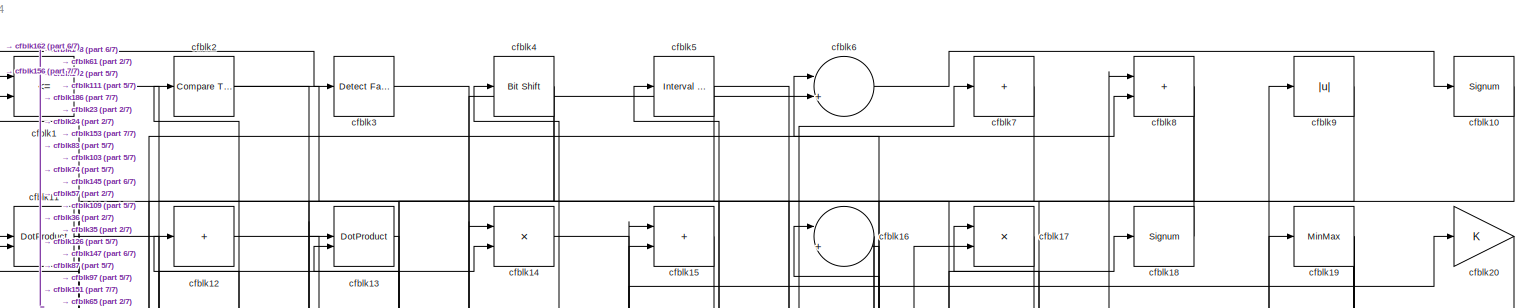
[diagram: root canvas - part 1/7, full width, top band]
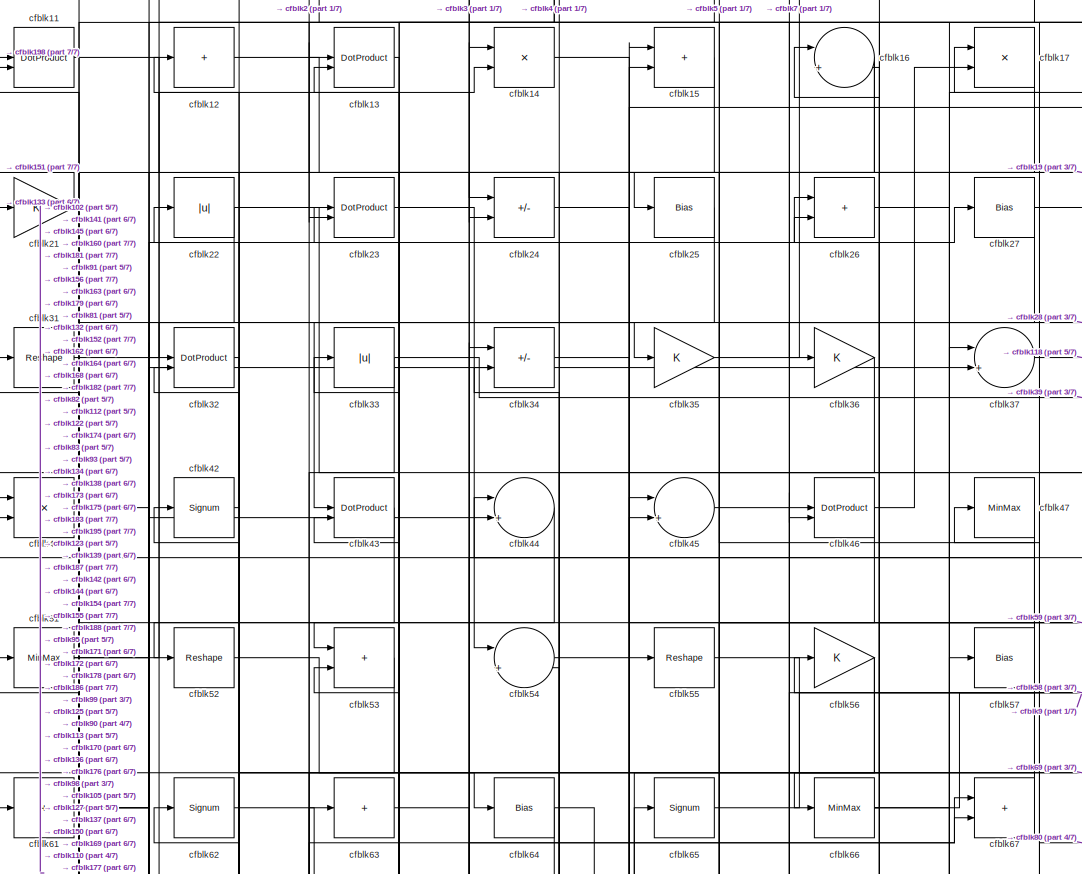
[diagram: root canvas - part 2/7, top center region]
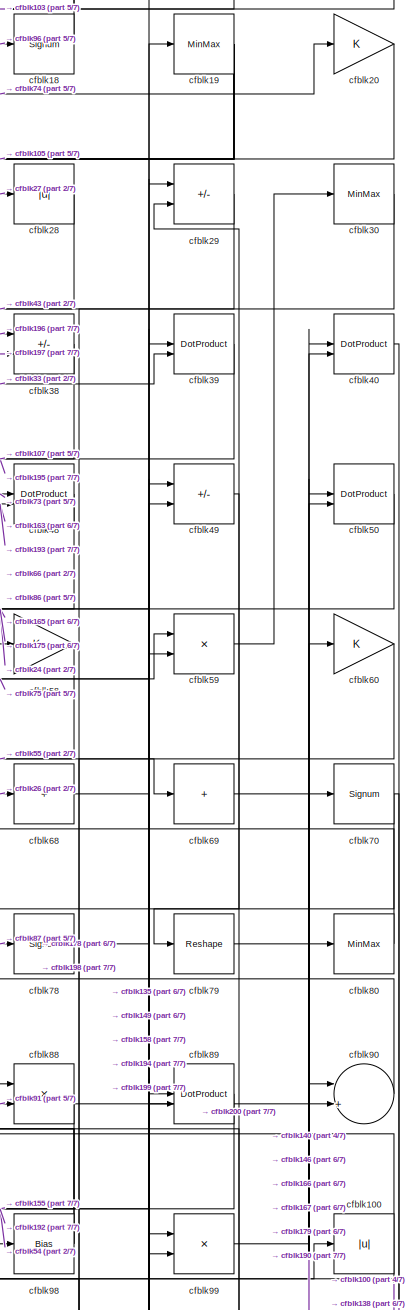
[diagram: root canvas - part 3/7, top right region]
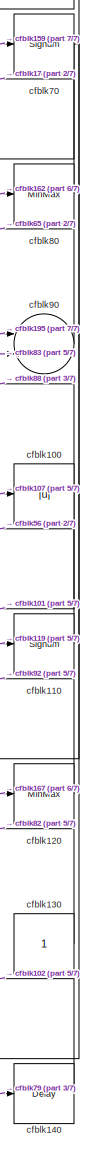
[diagram: root canvas - part 4/7, middle right region]
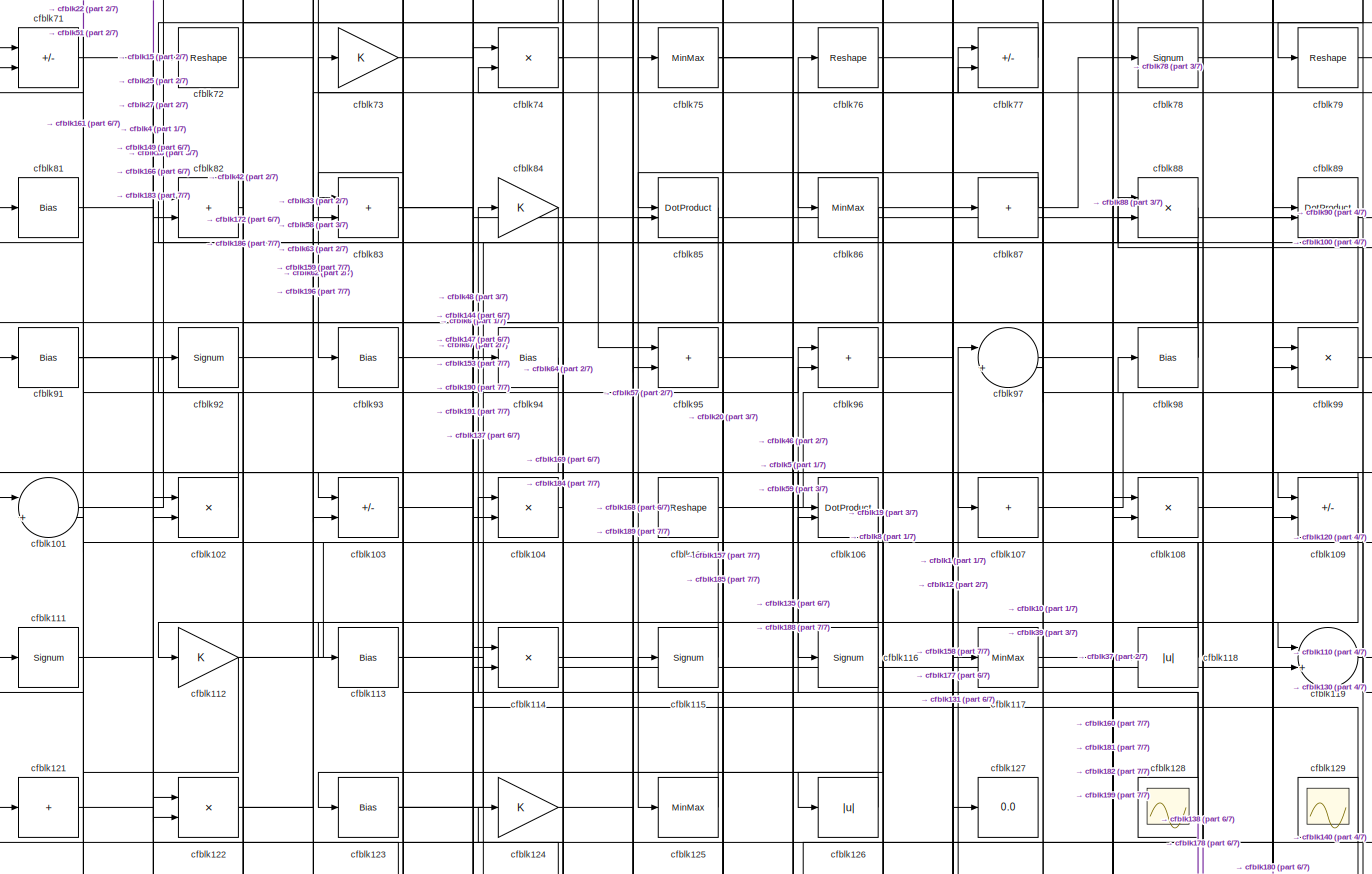
[diagram: root canvas - part 5/7, full width, middle band]
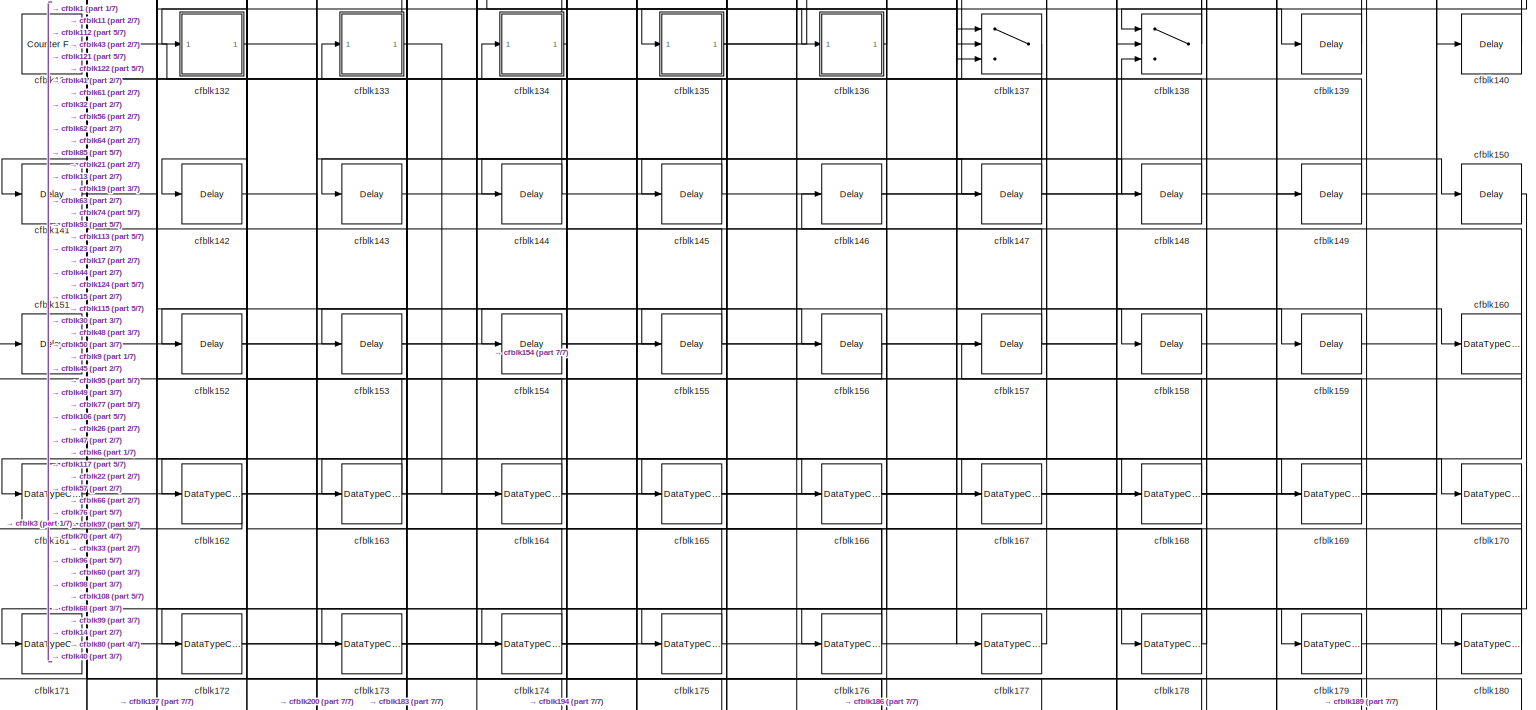
[diagram: root canvas - part 6/7, full width, bottom band]
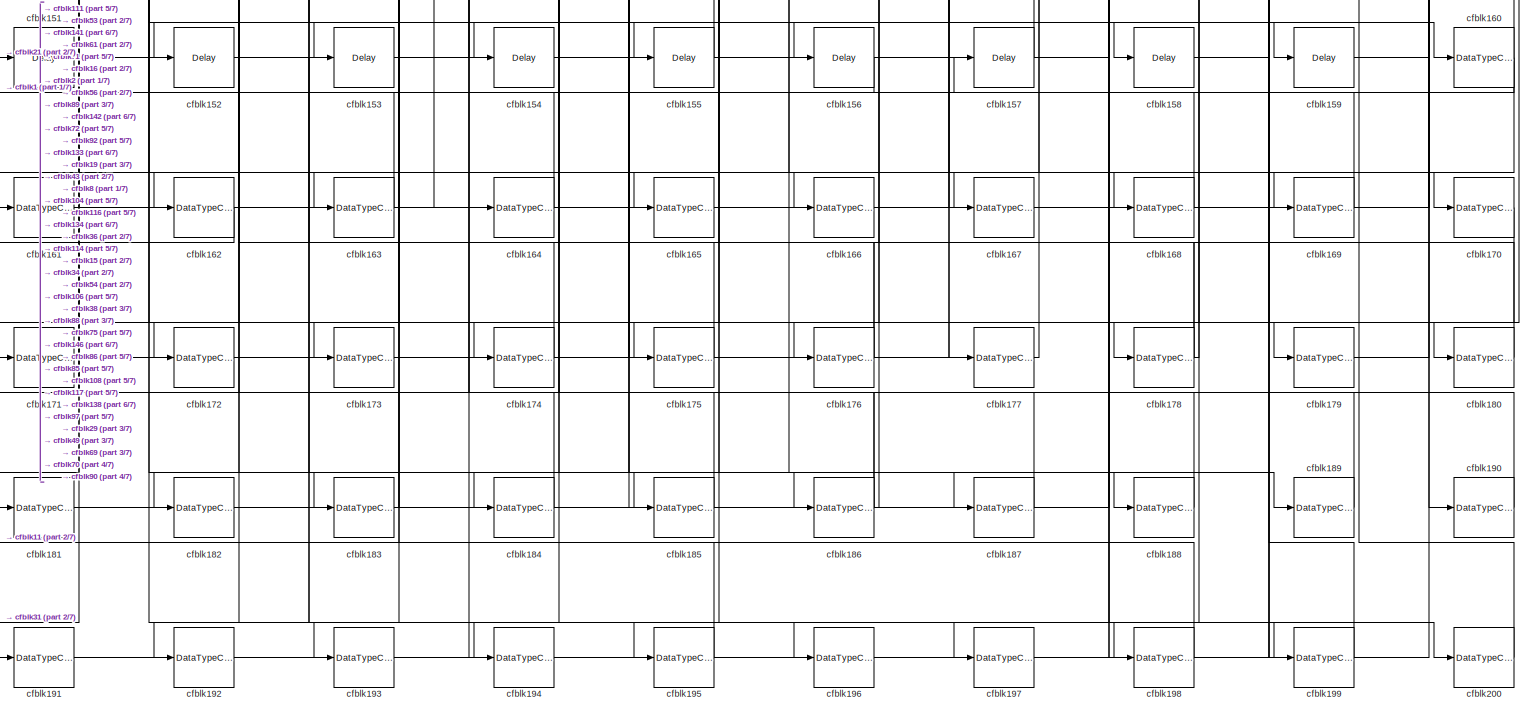
[diagram: root canvas - part 7/7, full width, bottom band]
MODEL slx_fe94e44add44
KIND model
CONFIG AbsTol = auto
CONFIG EnableMultiTasking = off
CONFIG FixedStep = auto
CONFIG MaxStep = auto
CONFIG MinStep = auto
CONFIG RelTol = 1e-3
CONFIG SampleTimeConstraint = Unconstrained
CONFIG SolverName = VariableStepAuto
CONFIG StartTime = 0.0
CONFIG StopTime = 10.0
BLOCK [RelationalOperator] cfblk1
  InputSameDT = off
  Operator = <=
  OutDataTypeStr = boolean
BLOCK [Signum] cfblk10
BLOCK [Abs] cfblk100
  SaturateOnIntegerOverflow = off
BLOCK [Sum] cfblk101
  Inputs = |++
BLOCK [Product] cfblk102
  Inputs = */
  RndMeth = Zero
  SaturateOnIntegerOverflow = on
BLOCK [Sum] cfblk103
  IconShape = rectangular
  Inputs = +-
BLOCK [Product] cfblk104
  Inputs = */
  RndMeth = Zero
  SaturateOnIntegerOverflow = on
BLOCK [Reshape] cfblk105
BLOCK [DotProduct] cfblk106
  OutDataTypeStr = Inherit: Inherit via internal rule
BLOCK [Sum] cfblk107
  IconShape = rectangular
  Inputs = +
BLOCK [Product] cfblk108
  Inputs = */
  RndMeth = Zero
  SaturateOnIntegerOverflow = on
BLOCK [Sum] cfblk109
  IconShape = rectangular
  Inputs = +-
BLOCK [DotProduct] cfblk11
  OutDataTypeStr = Inherit: Inherit via internal rule
BLOCK [Signum] cfblk110
BLOCK [Signum] cfblk111
BLOCK [Gain] cfblk112
BLOCK [Bias] cfblk113
  Bias = 0.0
  SaturateOnIntegerOverflow = off
BLOCK [Product] cfblk114
  Inputs = */
  RndMeth = Zero
  SaturateOnIntegerOverflow = on
BLOCK [Signum] cfblk115
BLOCK [Signum] cfblk116
BLOCK [MinMax] cfblk117
BLOCK [Abs] cfblk118
  SaturateOnIntegerOverflow = off
BLOCK [Sum] cfblk119
  Inputs = |++
BLOCK [Sum] cfblk12
  IconShape = rectangular
  Inputs = +
BLOCK [MinMax] cfblk120
BLOCK [Sum] cfblk121
  IconShape = rectangular
  Inputs = +
BLOCK [Product] cfblk122
  Inputs = */
  RndMeth = Zero
  SaturateOnIntegerOverflow = on
BLOCK [Bias] cfblk123
  Bias = 0.0
  SaturateOnIntegerOverflow = off
BLOCK [Gain] cfblk124
BLOCK [MinMax] cfblk125
BLOCK [Abs] cfblk126
  SaturateOnIntegerOverflow = off
BLOCK [Display] cfblk127
  Decimation = 1
BLOCK [Scope] cfblk128
  Floating = on
  NumInputPorts = 1
  ScopeSpecificationString = Simulink.scopes.TimeScopeBlockCfg('CurrentConfiguration', extmgr.ConfigurationSet(extmgr.Configuration('Core','General UI',true,'FigureColor',[0.156862745098039 0.156862745098039 0.156862745098039]),extmgr.Configuration('Core','Source UI',true),extmgr.Configuration('Sources','WiredSimulink',true,'DataLoggingVariableName','ScopeData1','DataLoggingSaveFormat','StructureWithTime','DataLoggingLimitDat...<+2713ch>
BLOCK [Scope] cfblk129
  Floating = on
  NumInputPorts = 1
  ScopeSpecificationString = Simulink.scopes.TimeScopeBlockCfg('CurrentConfiguration', extmgr.ConfigurationSet(extmgr.Configuration('Core','General UI',true,'FigureColor',[0.156862745098039 0.156862745098039 0.156862745098039]),extmgr.Configuration('Core','Source UI',true),extmgr.Configuration('Sources','WiredSimulink',true,'DataLoggingVariableName','ScopeData1','DataLoggingSaveFormat','StructureWithTime','DataLoggingLimitDat...<+2713ch>
BLOCK [DotProduct] cfblk13
  OutDataTypeStr = Inherit: Inherit via internal rule
BLOCK [Constant] cfblk130
  SampleTime = -1
BLOCK [Reference] cfblk131  REF=hdlsllib/Sources/Counter
Free-Running
  SourceBlock = hdlsllib/Sources/Counter\nFree-Running
  SourceType = Counter Free-Running
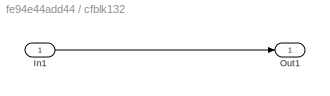
BLOCK [SubSystem] cfblk132
  LibrarySourceBlock = hdlsllib/Ports &\nSubsystems/Subsystem
BLOCK [Inport] cfblk132/In1
BLOCK [Outport] cfblk132/Out1
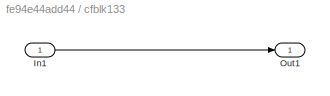
BLOCK [SubSystem] cfblk133
  LibrarySourceBlock = hdlsllib/Ports &\nSubsystems/Subsystem
BLOCK [Inport] cfblk133/In1
BLOCK [Outport] cfblk133/Out1
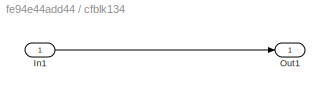
BLOCK [SubSystem] cfblk134
  LibrarySourceBlock = hdlsllib/Ports &\nSubsystems/Subsystem
BLOCK [Inport] cfblk134/In1
BLOCK [Outport] cfblk134/Out1
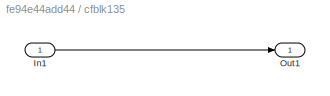
BLOCK [SubSystem] cfblk135
  LibrarySourceBlock = hdlsllib/Ports &\nSubsystems/Subsystem
BLOCK [Inport] cfblk135/In1
BLOCK [Outport] cfblk135/Out1
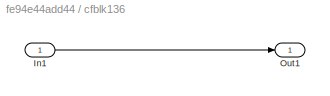
BLOCK [SubSystem] cfblk136
  LibrarySourceBlock = hdlsllib/Ports &\nSubsystems/Subsystem
BLOCK [Inport] cfblk136/In1
BLOCK [Outport] cfblk136/Out1
BLOCK [Switch] cfblk137
  InputSameDT = off
  SaturateOnIntegerOverflow = off
BLOCK [Switch] cfblk138
  InputSameDT = off
  SaturateOnIntegerOverflow = off
BLOCK [Delay] cfblk139
  InputPortMap = u0
  SampleTime = 1
BLOCK [Product] cfblk14
  Inputs = */
  RndMeth = Zero
  SaturateOnIntegerOverflow = on
BLOCK [Delay] cfblk140
  InputPortMap = u0
  SampleTime = 1
BLOCK [Delay] cfblk141
  InputPortMap = u0
  SampleTime = 1
BLOCK [Delay] cfblk142
  InputPortMap = u0
  SampleTime = 1
BLOCK [Delay] cfblk143
  InputPortMap = u0
  SampleTime = 1
BLOCK [Delay] cfblk144
  InputPortMap = u0
  SampleTime = 1
BLOCK [Delay] cfblk145
  InputPortMap = u0
  SampleTime = 1
BLOCK [Delay] cfblk146
  InputPortMap = u0
  SampleTime = 1
BLOCK [Delay] cfblk147
  InputPortMap = u0
  SampleTime = 1
BLOCK [Delay] cfblk148
  InputPortMap = u0
  SampleTime = 1
BLOCK [Delay] cfblk149
  InputPortMap = u0
  SampleTime = 1
BLOCK [Sum] cfblk15
  IconShape = rectangular
BLOCK [Delay] cfblk150
  InputPortMap = u0
  SampleTime = 1
BLOCK [Delay] cfblk151
  InputPortMap = u0
  SampleTime = 1
BLOCK [Delay] cfblk152
  InputPortMap = u0
  SampleTime = 1
BLOCK [Delay] cfblk153
  InputPortMap = u0
  SampleTime = 1
BLOCK [Delay] cfblk154
  InputPortMap = u0
  SampleTime = 1
BLOCK [Delay] cfblk155
  InputPortMap = u0
  SampleTime = 1
BLOCK [Delay] cfblk156
  InputPortMap = u0
  SampleTime = 1
BLOCK [Delay] cfblk157
  InputPortMap = u0
  SampleTime = 1
BLOCK [Delay] cfblk158
  InputPortMap = u0
  SampleTime = 1
BLOCK [Delay] cfblk159
  InputPortMap = u0
  SampleTime = 1
BLOCK [Sum] cfblk16
  Inputs = |++
BLOCK [DataTypeConversion] cfblk160
  RndMeth = Floor
  SaturateOnIntegerOverflow = off
BLOCK [DataTypeConversion] cfblk161
  OutDataTypeStr = uint8
  RndMeth = Floor
  SaturateOnIntegerOverflow = off
BLOCK [DataTypeConversion] cfblk162
  RndMeth = Floor
  SaturateOnIntegerOverflow = off
BLOCK [DataTypeConversion] cfblk163
  OutDataTypeStr = uint8
  RndMeth = Floor
  SaturateOnIntegerOverflow = off
BLOCK [DataTypeConversion] cfblk164
  OutDataTypeStr = uint8
  RndMeth = Floor
  SaturateOnIntegerOverflow = off
BLOCK [DataTypeConversion] cfblk165
  OutDataTypeStr = uint8
  RndMeth = Floor
  SaturateOnIntegerOverflow = off
BLOCK [DataTypeConversion] cfblk166
  OutDataTypeStr = uint8
  RndMeth = Floor
  SaturateOnIntegerOverflow = off
BLOCK [DataTypeConversion] cfblk167
  OutDataTypeStr = uint8
  RndMeth = Floor
  SaturateOnIntegerOverflow = off
BLOCK [DataTypeConversion] cfblk168
  OutDataTypeStr = uint8
  RndMeth = Floor
  SaturateOnIntegerOverflow = off
BLOCK [DataTypeConversion] cfblk169
  OutDataTypeStr = uint8
  RndMeth = Floor
  SaturateOnIntegerOverflow = off
BLOCK [Product] cfblk17
  Inputs = */
  RndMeth = Zero
  SaturateOnIntegerOverflow = on
BLOCK [DataTypeConversion] cfblk170
  OutDataTypeStr = uint8
  RndMeth = Floor
  SaturateOnIntegerOverflow = off
BLOCK [DataTypeConversion] cfblk171
  OutDataTypeStr = uint8
  RndMeth = Floor
  SaturateOnIntegerOverflow = off
BLOCK [DataTypeConversion] cfblk172
  OutDataTypeStr = uint8
  RndMeth = Floor
  SaturateOnIntegerOverflow = off
BLOCK [DataTypeConversion] cfblk173
  OutDataTypeStr = uint8
  RndMeth = Floor
  SaturateOnIntegerOverflow = off
BLOCK [DataTypeConversion] cfblk174
  OutDataTypeStr = uint8
  RndMeth = Floor
  SaturateOnIntegerOverflow = off
BLOCK [DataTypeConversion] cfblk175
  OutDataTypeStr = uint8
  RndMeth = Floor
  SaturateOnIntegerOverflow = off
BLOCK [DataTypeConversion] cfblk176
  RndMeth = Floor
  SaturateOnIntegerOverflow = off
BLOCK [DataTypeConversion] cfblk177
  OutDataTypeStr = uint8
  RndMeth = Floor
  SaturateOnIntegerOverflow = off
BLOCK [DataTypeConversion] cfblk178
  RndMeth = Floor
  SaturateOnIntegerOverflow = off
BLOCK [DataTypeConversion] cfblk179
  OutDataTypeStr = uint8
  RndMeth = Floor
  SaturateOnIntegerOverflow = off
BLOCK [Signum] cfblk18
BLOCK [DataTypeConversion] cfblk180
  OutDataTypeStr = uint8
  RndMeth = Floor
  SaturateOnIntegerOverflow = off
BLOCK [DataTypeConversion] cfblk181
  OutDataTypeStr = uint8
  RndMeth = Floor
  SaturateOnIntegerOverflow = off
BLOCK [DataTypeConversion] cfblk182
  OutDataTypeStr = uint8
  RndMeth = Floor
  SaturateOnIntegerOverflow = off
BLOCK [DataTypeConversion] cfblk183
  RndMeth = Floor
  SaturateOnIntegerOverflow = off
BLOCK [DataTypeConversion] cfblk184
  OutDataTypeStr = uint8
  RndMeth = Floor
  SaturateOnIntegerOverflow = off
BLOCK [DataTypeConversion] cfblk185
  OutDataTypeStr = uint8
  RndMeth = Floor
  SaturateOnIntegerOverflow = off
BLOCK [DataTypeConversion] cfblk186
  RndMeth = Floor
  SaturateOnIntegerOverflow = off
BLOCK [DataTypeConversion] cfblk187
  OutDataTypeStr = uint8
  RndMeth = Floor
  SaturateOnIntegerOverflow = off
BLOCK [DataTypeConversion] cfblk188
  OutDataTypeStr = uint8
  RndMeth = Floor
  SaturateOnIntegerOverflow = off
BLOCK [DataTypeConversion] cfblk189
  OutDataTypeStr = uint8
  RndMeth = Floor
  SaturateOnIntegerOverflow = off
BLOCK [MinMax] cfblk19
BLOCK [DataTypeConversion] cfblk190
  OutDataTypeStr = uint8
  RndMeth = Floor
  SaturateOnIntegerOverflow = off
BLOCK [DataTypeConversion] cfblk191
  OutDataTypeStr = uint8
  RndMeth = Floor
  SaturateOnIntegerOverflow = off
BLOCK [DataTypeConversion] cfblk192
  OutDataTypeStr = uint8
  RndMeth = Floor
  SaturateOnIntegerOverflow = off
BLOCK [DataTypeConversion] cfblk193
  OutDataTypeStr = uint8
  RndMeth = Floor
  SaturateOnIntegerOverflow = off
BLOCK [DataTypeConversion] cfblk194
  OutDataTypeStr = uint8
  RndMeth = Floor
  SaturateOnIntegerOverflow = off
BLOCK [DataTypeConversion] cfblk195
  RndMeth = Floor
  SaturateOnIntegerOverflow = off
BLOCK [DataTypeConversion] cfblk196
  OutDataTypeStr = uint8
  RndMeth = Floor
  SaturateOnIntegerOverflow = off
BLOCK [DataTypeConversion] cfblk197
  OutDataTypeStr = uint8
  RndMeth = Floor
  SaturateOnIntegerOverflow = off
BLOCK [DataTypeConversion] cfblk198
  OutDataTypeStr = uint8
  RndMeth = Floor
  SaturateOnIntegerOverflow = off
BLOCK [DataTypeConversion] cfblk199
  OutDataTypeStr = uint8
  RndMeth = Floor
  SaturateOnIntegerOverflow = off
BLOCK [Reference] cfblk2  REF=hdlsllib/Logic and Bit
Operations/Compare
To Zero
  SourceBlock = hdlsllib/Logic and Bit\nOperations/Compare\nTo Zero
  SourceType = Compare To Zero
BLOCK [Gain] cfblk20
BLOCK [DataTypeConversion] cfblk200
  OutDataTypeStr = uint8
  RndMeth = Floor
  SaturateOnIntegerOverflow = off
BLOCK [Gain] cfblk21
BLOCK [Abs] cfblk22
  SaturateOnIntegerOverflow = off
BLOCK [DotProduct] cfblk23
  OutDataTypeStr = Inherit: Inherit via internal rule
BLOCK [Sum] cfblk24
  IconShape = rectangular
  Inputs = +-
BLOCK [Bias] cfblk25
  Bias = 0.0
  SaturateOnIntegerOverflow = off
BLOCK [Sum] cfblk26
  IconShape = rectangular
BLOCK [Bias] cfblk27
  Bias = 0.0
  SaturateOnIntegerOverflow = off
BLOCK [Abs] cfblk28
  SaturateOnIntegerOverflow = off
BLOCK [Sum] cfblk29
  IconShape = rectangular
  Inputs = +-
BLOCK [Reference] cfblk3  REF=hdlsllib/Logic and Bit
Operations/Detect Fall
Nonpositive
  SourceBlock = hdlsllib/Logic and Bit\nOperations/Detect Fall\nNonpositive
  SourceType = Detect Fall Nonpositive
BLOCK [MinMax] cfblk30
BLOCK [Reshape] cfblk31
BLOCK [DotProduct] cfblk32
  OutDataTypeStr = Inherit: Inherit via internal rule
BLOCK [Abs] cfblk33
  SaturateOnIntegerOverflow = off
BLOCK [Sum] cfblk34
  IconShape = rectangular
  Inputs = +-
BLOCK [Gain] cfblk35
BLOCK [Gain] cfblk36
BLOCK [Sum] cfblk37
  Inputs = |++
BLOCK [Sum] cfblk38
  IconShape = rectangular
  Inputs = +-
BLOCK [DotProduct] cfblk39
  OutDataTypeStr = Inherit: Inherit via internal rule
BLOCK [Reference] cfblk4  REF=hdlsllib/Logic and Bit
Operations/Bit Shift
  SourceBlock = hdlsllib/Logic and Bit\nOperations/Bit Shift
  SourceType = Bit Shift
BLOCK [DotProduct] cfblk40
  OutDataTypeStr = Inherit: Inherit via internal rule
BLOCK [Product] cfblk41
  Inputs = */
  RndMeth = Zero
  SaturateOnIntegerOverflow = on
BLOCK [Signum] cfblk42
BLOCK [DotProduct] cfblk43
  OutDataTypeStr = Inherit: Inherit via internal rule
BLOCK [Sum] cfblk44
  Inputs = |++
BLOCK [Sum] cfblk45
  Inputs = |++
BLOCK [DotProduct] cfblk46
  OutDataTypeStr = Inherit: Inherit via internal rule
BLOCK [MinMax] cfblk47
BLOCK [DotProduct] cfblk48
  OutDataTypeStr = Inherit: Inherit via internal rule
BLOCK [Sum] cfblk49
  IconShape = rectangular
  Inputs = +-
BLOCK [Reference] cfblk5  REF=hdlsllib/Logic and Bit
Operations/Interval Test
  SourceBlock = hdlsllib/Logic and Bit\nOperations/Interval Test
  SourceType = Interval Test
BLOCK [DotProduct] cfblk50
  OutDataTypeStr = Inherit: Inherit via internal rule
BLOCK [MinMax] cfblk51
BLOCK [Reshape] cfblk52
BLOCK [Sum] cfblk53
  IconShape = rectangular
BLOCK [Sum] cfblk54
  Inputs = |++
BLOCK [Reshape] cfblk55
BLOCK [Gain] cfblk56
BLOCK [Bias] cfblk57
  Bias = 0.0
  SaturateOnIntegerOverflow = off
BLOCK [Gain] cfblk58
BLOCK [Product] cfblk59
  Inputs = */
  RndMeth = Zero
  SaturateOnIntegerOverflow = on
BLOCK [Sum] cfblk6
  Inputs = |++
BLOCK [Gain] cfblk60
BLOCK [Sum] cfblk61
  IconShape = rectangular
  Inputs = +
BLOCK [Signum] cfblk62
BLOCK [Sum] cfblk63
  IconShape = rectangular
  Inputs = +
BLOCK [Bias] cfblk64
  Bias = 0.0
  SaturateOnIntegerOverflow = off
BLOCK [Signum] cfblk65
BLOCK [MinMax] cfblk66
BLOCK [Sum] cfblk67
  IconShape = rectangular
BLOCK [Sum] cfblk68
  IconShape = rectangular
  Inputs = +
BLOCK [Sum] cfblk69
  IconShape = rectangular
  Inputs = +
BLOCK [Sum] cfblk7
  IconShape = rectangular
  Inputs = +
BLOCK [Signum] cfblk70
BLOCK [Sum] cfblk71
  IconShape = rectangular
  Inputs = +-
BLOCK [Reshape] cfblk72
BLOCK [Gain] cfblk73
BLOCK [Product] cfblk74
  Inputs = */
  RndMeth = Zero
  SaturateOnIntegerOverflow = on
BLOCK [MinMax] cfblk75
BLOCK [Reshape] cfblk76
BLOCK [Sum] cfblk77
  IconShape = rectangular
  Inputs = +-
BLOCK [Signum] cfblk78
BLOCK [Reshape] cfblk79
BLOCK [Sum] cfblk8
  IconShape = rectangular
BLOCK [MinMax] cfblk80
BLOCK [Bias] cfblk81
  Bias = 0.0
  SaturateOnIntegerOverflow = off
BLOCK [Sum] cfblk82
  IconShape = rectangular
BLOCK [Sum] cfblk83
  IconShape = rectangular
BLOCK [Gain] cfblk84
BLOCK [DotProduct] cfblk85
  OutDataTypeStr = Inherit: Inherit via internal rule
BLOCK [MinMax] cfblk86
BLOCK [Sum] cfblk87
  IconShape = rectangular
  Inputs = +
BLOCK [Product] cfblk88
  Inputs = */
  RndMeth = Zero
  SaturateOnIntegerOverflow = on
BLOCK [DotProduct] cfblk89
  OutDataTypeStr = Inherit: Inherit via internal rule
BLOCK [Abs] cfblk9
  SaturateOnIntegerOverflow = off
BLOCK [Sum] cfblk90
  Inputs = |++
BLOCK [Bias] cfblk91
  Bias = 0.0
  SaturateOnIntegerOverflow = off
BLOCK [Signum] cfblk92
BLOCK [Bias] cfblk93
  Bias = 0.0
  SaturateOnIntegerOverflow = off
BLOCK [Bias] cfblk94
  Bias = 0.0
  SaturateOnIntegerOverflow = off
BLOCK [Sum] cfblk95
  IconShape = rectangular
BLOCK [Sum] cfblk96
  IconShape = rectangular
BLOCK [Sum] cfblk97
  Inputs = |++
BLOCK [Bias] cfblk98
  Bias = 0.0
  SaturateOnIntegerOverflow = off
BLOCK [Product] cfblk99
  Inputs = */
  RndMeth = Zero
  SaturateOnIntegerOverflow = on
NET cfblk100:1 -> cfblk101:1, cfblk88:1
LINE cfblk101:1 -> cfblk96:1
LINE cfblk102:1 -> cfblk51:1
LINE cfblk103:1 -> cfblk6:2
LINE cfblk104:1 -> cfblk74:2
LINE cfblk105:1 -> cfblk37:1
LINE cfblk106:1 -> cfblk185:1
LINE cfblk107:1 -> cfblk100:1
LINE cfblk108:1 -> cfblk180:1
NET cfblk109:1 -> cfblk106:1, cfblk112:1
LINE cfblk10:1 -> cfblk97:2
LINE cfblk110:1 -> cfblk56:1
LINE cfblk111:1 -> cfblk8:2
NET cfblk112:1 -> cfblk161:1, cfblk67:2, cfblk94:1
NET cfblk113:1 -> cfblk137:3, cfblk46:1
LINE cfblk114:1 -> cfblk189:1
LINE cfblk115:1 -> cfblk81:1
NET cfblk116:1 -> cfblk184:1, cfblk73:1
LINE cfblk117:1 -> cfblk160:1
NET cfblk118:1 -> cfblk77:1, cfblk84:1
LINE cfblk119:1 -> cfblk110:1
LINE cfblk11:1 -> cfblk25:1
LINE cfblk120:1 -> cfblk92:1
LINE cfblk121:1 -> cfblk166:1
NET cfblk122:1 -> cfblk63:1, cfblk75:1
NET cfblk123:1 -> cfblk119:2, cfblk67:1, cfblk76:1
LINE cfblk124:1 -> cfblk168:1
LINE cfblk125:1 -> cfblk104:1
LINE cfblk126:1 -> cfblk123:1
LINE cfblk12:1 -> cfblk127:1
LINE cfblk130:1 -> cfblk82:1
LINE cfblk131:1 -> cfblk97:1
LINE cfblk132/In1:1 -> cfblk132/Out1:1
LINE cfblk132:1 -> cfblk148:1
LINE cfblk133/In1:1 -> cfblk133/Out1:1
NET cfblk133:1 -> cfblk164:1, cfblk21:1
LINE cfblk134/In1:1 -> cfblk134/Out1:1
NET cfblk134:1 -> cfblk194:1, cfblk23:1
LINE cfblk135/In1:1 -> cfblk135/Out1:1
NET cfblk135:1 -> cfblk49:2, cfblk77:2
LINE cfblk136/In1:1 -> cfblk136/Out1:1
LINE cfblk136:1 -> cfblk26:1
LINE cfblk137:1 -> cfblk143:1
NET cfblk138:1 -> cfblk33:1, cfblk96:2
LINE cfblk139:1 -> cfblk14:1
LINE cfblk13:1 -> cfblk173:1
LINE cfblk140:1 -> cfblk102:1
LINE cfblk141:1 -> cfblk197:1
LINE cfblk142:1 -> cfblk200:1
LINE cfblk143:1 -> cfblk138:3
LINE cfblk144:1 -> cfblk74:1
LINE cfblk145:1 -> cfblk11:2
LINE cfblk146:1 -> cfblk40:2
LINE cfblk147:1 -> cfblk6:1
LINE cfblk148:1 -> cfblk1:2
LINE cfblk149:1 -> cfblk122:1
LINE cfblk14:1 -> cfblk55:1
LINE cfblk150:1 -> cfblk171:1
LINE cfblk151:1 -> cfblk8:1
LINE cfblk152:1 -> cfblk187:1
LINE cfblk153:1 -> cfblk104:2
LINE cfblk154:1 -> cfblk138:2
LINE cfblk155:1 -> cfblk54:2
LINE cfblk156:1 -> cfblk1:1
LINE cfblk157:1 -> cfblk85:2
LINE cfblk158:1 -> cfblk19:1
LINE cfblk159:1 -> cfblk70:1
LINE cfblk15:1 -> cfblk82:2
NET cfblk160:1 -> cfblk157:1, cfblk191:1, cfblk31:1
LINE cfblk161:1 -> cfblk117:1
NET cfblk162:1 -> cfblk3:1, cfblk80:1
LINE cfblk163:1 -> cfblk32:1
LINE cfblk164:1 -> cfblk32:2
LINE cfblk165:1 -> cfblk99:1
LINE cfblk166:1 -> cfblk50:1
LINE cfblk167:1 -> cfblk50:2
LINE cfblk168:1 -> cfblk22:1
LINE cfblk169:1 -> cfblk124:1
NET cfblk16:1 -> cfblk152:1, cfblk41:1
LINE cfblk170:1 -> cfblk174:1
LINE cfblk171:1 -> cfblk45:1
LINE cfblk172:1 -> cfblk45:2
LINE cfblk173:1 -> cfblk57:1
LINE cfblk174:1 -> cfblk13:1
LINE cfblk175:1 -> cfblk13:2
NET cfblk176:1 -> cfblk44:1, cfblk62:1
LINE cfblk177:1 -> cfblk47:1
NET cfblk178:1 -> cfblk106:2, cfblk15:1, cfblk98:1
LINE cfblk179:1 -> cfblk60:1
LINE cfblk17:1 -> cfblk144:1
LINE cfblk180:1 -> cfblk115:1
LINE cfblk181:1 -> cfblk108:1
LINE cfblk182:1 -> cfblk108:2
NET cfblk183:1 -> cfblk133:1, cfblk15:2, cfblk43:2
LINE cfblk184:1 -> cfblk71:1
LINE cfblk185:1 -> cfblk71:2
NET cfblk186:1 -> cfblk111:1, cfblk146:1, cfblk2:1
LINE cfblk187:1 -> cfblk34:1
LINE cfblk188:1 -> cfblk34:2
LINE cfblk189:1 -> cfblk134:1
LINE cfblk18:1 -> cfblk103:1
LINE cfblk190:1 -> cfblk114:1
LINE cfblk191:1 -> cfblk114:2
LINE cfblk192:1 -> cfblk49:1
LINE cfblk193:1 -> cfblk89:1
LINE cfblk194:1 -> cfblk89:2
NET cfblk195:1 -> cfblk53:2, cfblk90:1
LINE cfblk196:1 -> cfblk38:1
LINE cfblk197:1 -> cfblk38:2
LINE cfblk198:1 -> cfblk11:1
LINE cfblk199:1 -> cfblk29:1
NET cfblk19:1 -> cfblk163:1, cfblk193:1, cfblk48:2, cfblk66:1, cfblk86:1
LINE cfblk1:1 -> cfblk87:1
LINE cfblk200:1 -> cfblk29:2
LINE cfblk20:1 -> cfblk105:1
LINE cfblk21:1 -> cfblk151:1
NET cfblk22:1 -> cfblk137:1, cfblk91:1
LINE cfblk23:1 -> cfblk54:1
LINE cfblk24:1 -> cfblk59:2
LINE cfblk25:1 -> cfblk122:2
LINE cfblk26:1 -> cfblk150:1
NET cfblk27:1 -> cfblk28:1, cfblk46:2
LINE cfblk28:1 -> cfblk43:1
LINE cfblk29:1 -> cfblk198:1
NET cfblk2:1 -> cfblk24:2, cfblk36:1
LINE cfblk30:1 -> cfblk135:1
LINE cfblk31:1 -> cfblk35:1
LINE cfblk32:1 -> cfblk162:1
NET cfblk33:1 -> cfblk39:2, cfblk83:2
LINE cfblk34:1 -> cfblk186:1
LINE cfblk35:1 -> cfblk7:1
LINE cfblk36:1 -> cfblk154:1
LINE cfblk37:1 -> cfblk118:1
LINE cfblk38:1 -> cfblk195:1
LINE cfblk39:1 -> cfblk107:1
LINE cfblk3:1 -> cfblk24:1
LINE cfblk40:1 -> cfblk138:1
LINE cfblk41:1 -> cfblk179:1
LINE cfblk42:1 -> cfblk12:1
LINE cfblk43:1 -> cfblk141:1
LINE cfblk44:1 -> cfblk53:1
LINE cfblk45:1 -> cfblk170:1
NET cfblk46:1 -> cfblk17:2, cfblk52:1
LINE cfblk47:1 -> cfblk176:1
LINE cfblk48:1 -> cfblk175:1
LINE cfblk49:1 -> cfblk79:1
NET cfblk4:1 -> cfblk102:2, cfblk23:2
LINE cfblk50:1 -> cfblk165:1
NET cfblk51:1 -> cfblk14:2, cfblk37:2
LINE cfblk52:1 -> cfblk64:1
LINE cfblk53:1 -> cfblk181:1
LINE cfblk54:1 -> cfblk99:2
LINE cfblk55:1 -> cfblk69:1
NET cfblk56:1 -> cfblk132:1, cfblk182:1
NET cfblk57:1 -> cfblk125:1, cfblk41:2, cfblk5:1
LINE cfblk58:1 -> cfblk103:2
LINE cfblk59:1 -> cfblk30:1
NET cfblk5:1 -> cfblk109:1, cfblk83:1
LINE cfblk60:1 -> cfblk178:1
NET cfblk61:1 -> cfblk136:1, cfblk156:1, cfblk44:2
LINE cfblk62:1 -> cfblk93:1
LINE cfblk63:1 -> cfblk139:1
NET cfblk64:1 -> cfblk142:1, cfblk95:1
LINE cfblk65:1 -> cfblk9:1
NET cfblk66:1 -> cfblk169:1, cfblk16:2, cfblk58:1
LINE cfblk67:1 -> cfblk16:1
LINE cfblk68:1 -> cfblk149:1
LINE cfblk69:1 -> cfblk190:1
LINE cfblk6:1 -> cfblk10:1
NET cfblk70:1 -> cfblk120:1, cfblk167:1
LINE cfblk71:1 -> cfblk183:1
LINE cfblk72:1 -> cfblk196:1
LINE cfblk73:1 -> cfblk48:1
NET cfblk74:1 -> cfblk20:1, cfblk4:1
NET cfblk75:1 -> cfblk188:1, cfblk59:1
LINE cfblk76:1 -> cfblk177:1
LINE cfblk77:1 -> cfblk72:1
LINE cfblk78:1 -> cfblk39:1
LINE cfblk79:1 -> cfblk140:1
LINE cfblk7:1 -> cfblk61:1
LINE cfblk80:1 -> cfblk17:1
LINE cfblk81:1 -> cfblk27:1
LINE cfblk82:1 -> cfblk42:1
NET cfblk83:1 -> cfblk119:1, cfblk90:2
LINE cfblk84:1 -> cfblk101:2
LINE cfblk85:1 -> cfblk172:1
NET cfblk86:1 -> cfblk158:1, cfblk95:2
NET cfblk87:1 -> cfblk78:1, cfblk85:1
LINE cfblk88:1 -> cfblk155:1
LINE cfblk89:1 -> cfblk192:1
NET cfblk8:1 -> cfblk126:1, cfblk153:1
LINE cfblk90:1 -> cfblk65:1
NET cfblk91:1 -> cfblk109:2, cfblk116:1, cfblk88:2
LINE cfblk92:1 -> cfblk159:1
NET cfblk93:1 -> cfblk113:1, cfblk147:1
LINE cfblk94:1 -> cfblk121:1
LINE cfblk95:1 -> cfblk137:2
LINE cfblk96:1 -> cfblk18:1
LINE cfblk97:1 -> cfblk199:1
NET cfblk98:1 -> cfblk26:2, cfblk68:1
LINE cfblk99:1 -> cfblk40:1
LINE cfblk9:1 -> cfblk145:1
note: NET lines group one-source signal fan-out (src -> all destinations, sorted); 1:1 wires keep LINE
